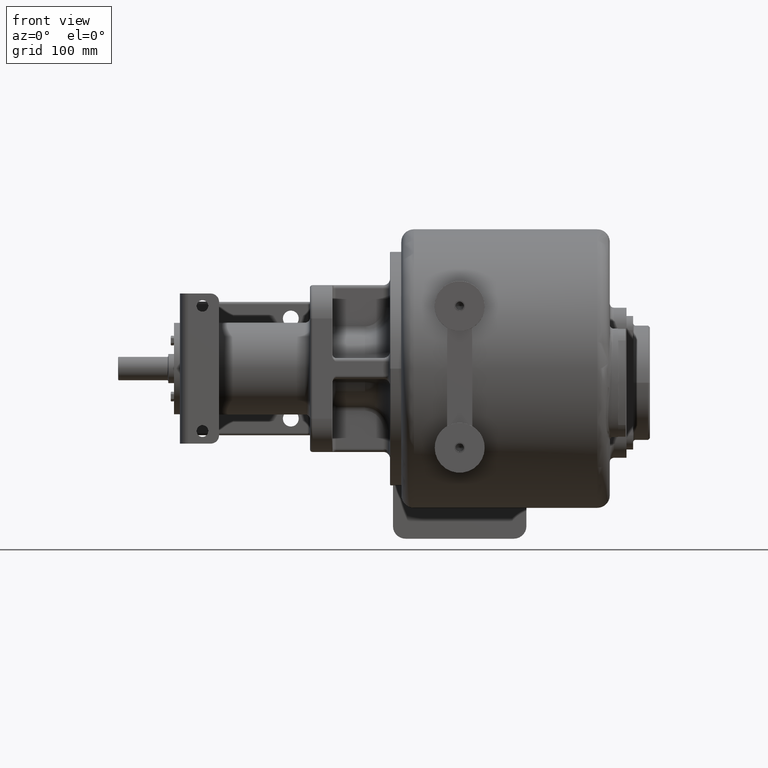
[diagram: clean part render]
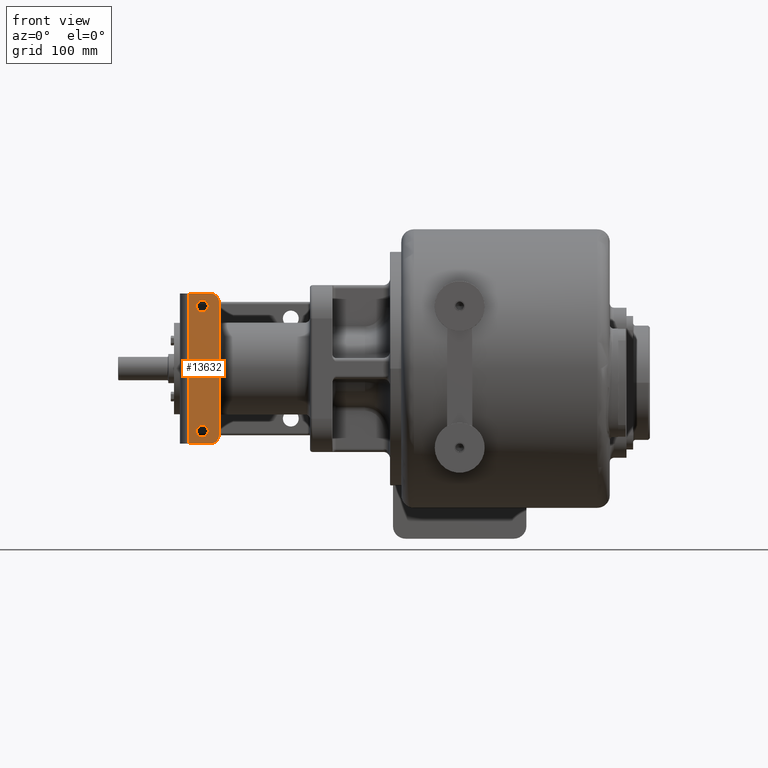
[diagram: same view with one face highlighted and labeled with its STEP entity id]
A machine part, front view. The second image highlights one B-rep face of the part: STEP entity #13632.
In plain terms, the highlighted planar face has unit normal (0, 1, 0).
Its self-contained STEP definition (entity closure, byte-faithful):
#218=DIRECTION('',(0.E0,0.E0,1.E0));
#219=VECTOR('',#218,1.8E2);
#220=CARTESIAN_POINT('',(-3.255E2,-1.E1,-9.E1));
#221=LINE('',#220,#219);
#236=CARTESIAN_POINT('',(-2.985E2,-1.E1,8.E1));
#237=DIRECTION('',(0.E0,-1.E0,0.E0));
#238=DIRECTION('',(1.E0,0.E0,0.E0));
#239=AXIS2_PLACEMENT_3D('',#236,#237,#238);
#241=DIRECTION('',(0.E0,0.E0,-1.E0));
#242=VECTOR('',#241,1.6E2);
#243=CARTESIAN_POINT('',(-2.885E2,-1.E1,8.E1));
#244=LINE('',#243,#242);
#245=CARTESIAN_POINT('',(-2.985E2,-1.E1,-8.E1));
#246=DIRECTION('',(0.E0,-1.E0,0.E0));
#247=DIRECTION('',(0.E0,0.E0,-1.E0));
#248=AXIS2_PLACEMENT_3D('',#245,#246,#247);
#250=DIRECTION('',(-1.E0,0.E0,0.E0));
#251=VECTOR('',#250,2.7E1);
#252=CARTESIAN_POINT('',(-2.985E2,-1.E1,-9.E1));
#253=LINE('',#252,#251);
#254=DIRECTION('',(1.E0,0.E0,0.E0));
#255=VECTOR('',#254,2.7E1);
#256=CARTESIAN_POINT('',(-3.255E2,-1.E1,9.E1));
#257=LINE('',#256,#255);
#258=CARTESIAN_POINT('',(-3.085E2,-1.E1,7.5E1));
#259=DIRECTION('',(0.E0,1.E0,0.E0));
#260=DIRECTION('',(0.E0,0.E0,1.E0));
#261=AXIS2_PLACEMENT_3D('',#258,#259,#260);
#263=CARTESIAN_POINT('',(-3.085E2,-1.E1,7.5E1));
#264=DIRECTION('',(0.E0,1.E0,0.E0));
#265=DIRECTION('',(0.E0,0.E0,-1.E0));
#266=AXIS2_PLACEMENT_3D('',#263,#264,#265);
#268=CARTESIAN_POINT('',(-3.085E2,-1.E1,-7.5E1));
#269=DIRECTION('',(0.E0,1.E0,0.E0));
#270=DIRECTION('',(0.E0,0.E0,1.E0));
#271=AXIS2_PLACEMENT_3D('',#268,#269,#270);
#273=CARTESIAN_POINT('',(-3.085E2,-1.E1,-7.5E1));
#274=DIRECTION('',(0.E0,1.E0,0.E0));
#275=DIRECTION('',(0.E0,0.E0,-1.E0));
#276=AXIS2_PLACEMENT_3D('',#273,#274,#275);
#13202=CARTESIAN_POINT('',(-3.255E2,-1.E1,-9.E1));
#13203=CARTESIAN_POINT('',(-3.255E2,-1.E1,9.E1));
#13204=VERTEX_POINT('',#13202);
#13205=VERTEX_POINT('',#13203);
#13222=CARTESIAN_POINT('',(-2.885E2,-1.E1,8.E1));
#13223=CARTESIAN_POINT('',(-2.985E2,-1.E1,9.E1));
#13224=VERTEX_POINT('',#13222);
#13225=VERTEX_POINT('',#13223);
#13230=CARTESIAN_POINT('',(-2.985E2,-1.E1,-9.E1));
#13231=CARTESIAN_POINT('',(-2.885E2,-1.E1,-8.E1));
#13232=VERTEX_POINT('',#13230);
#13233=VERTEX_POINT('',#13231);
#13250=CARTESIAN_POINT('',(-3.085E2,-1.E1,-6.8E1));
#13251=CARTESIAN_POINT('',(-3.085E2,-1.E1,-8.2E1));
#13252=VERTEX_POINT('',#13250);
#13253=VERTEX_POINT('',#13251);
#13254=CARTESIAN_POINT('',(-3.085E2,-1.E1,8.2E1));
#13255=CARTESIAN_POINT('',(-3.085E2,-1.E1,6.8E1));
#13256=VERTEX_POINT('',#13254);
#13257=VERTEX_POINT('',#13255);
#13602=CARTESIAN_POINT('',(-3.355E2,-1.E1,9.E1));
#13603=DIRECTION('',(0.E0,1.E0,0.E0));
#13604=DIRECTION('',(0.E0,0.E0,1.E0));
#13605=AXIS2_PLACEMENT_3D('',#13602,#13603,#13604);
#13606=PLANE('',#13605);
#13608=ORIENTED_EDGE('',*,*,#13607,.F.);
#13610=ORIENTED_EDGE('',*,*,#13609,.T.);
#13612=ORIENTED_EDGE('',*,*,#13611,.F.);
#13614=ORIENTED_EDGE('',*,*,#13613,.T.);
#13615=ORIENTED_EDGE('',*,*,#13592,.T.);
#13617=ORIENTED_EDGE('',*,*,#13616,.T.);
#13618=EDGE_LOOP('',(#13608,#13610,#13612,#13614,#13615,#13617));
#13619=FACE_OUTER_BOUND('',#13618,.F.);
#13621=ORIENTED_EDGE('',*,*,#13620,.F.);
#13623=ORIENTED_EDGE('',*,*,#13622,.F.);
#13624=EDGE_LOOP('',(#13621,#13623));
#13625=FACE_BOUND('',#13624,.F.);
#13627=ORIENTED_EDGE('',*,*,#13626,.F.);
#13629=ORIENTED_EDGE('',*,*,#13628,.F.);
#13630=EDGE_LOOP('',(#13627,#13629));
#13631=FACE_BOUND('',#13630,.F.);
#13632=ADVANCED_FACE('',(#13619,#13625,#13631),#13606,.F.);
#240=CIRCLE('',#239,1.E1);
#249=CIRCLE('',#248,1.E1);
#262=CIRCLE('',#261,7.E0);
#267=CIRCLE('',#266,7.E0);
#272=CIRCLE('',#271,7.E0);
#277=CIRCLE('',#276,7.E0);
#13592=EDGE_CURVE('',#13204,#13205,#221,.T.);
#13607=EDGE_CURVE('',#13224,#13225,#240,.T.);
#13609=EDGE_CURVE('',#13224,#13233,#244,.T.);
#13611=EDGE_CURVE('',#13232,#13233,#249,.T.);
#13613=EDGE_CURVE('',#13232,#13204,#253,.T.);
#13616=EDGE_CURVE('',#13205,#13225,#257,.T.);
#13620=EDGE_CURVE('',#13256,#13257,#262,.T.);
#13622=EDGE_CURVE('',#13257,#13256,#267,.T.);
#13626=EDGE_CURVE('',#13252,#13253,#272,.T.);
#13628=EDGE_CURVE('',#13253,#13252,#277,.T.);